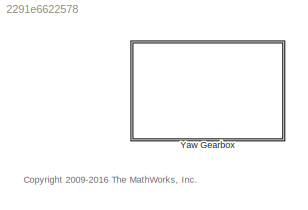
MODEL slx_2291e6622578
KIND library
CONFIG AbsTol = auto
CONFIG FixedStep = auto
CONFIG MaxStep = auto
CONFIG MinStep = auto
CONFIG RelTol = 1e-3
CONFIG SampleTimeConstraint = Unconstrained
CONFIG Solver = ode45
CONFIG SolverMode = Auto
CONFIG SolverName = ode45
CONFIG StartTime = 0.0
CONFIG StopTime = 10.0
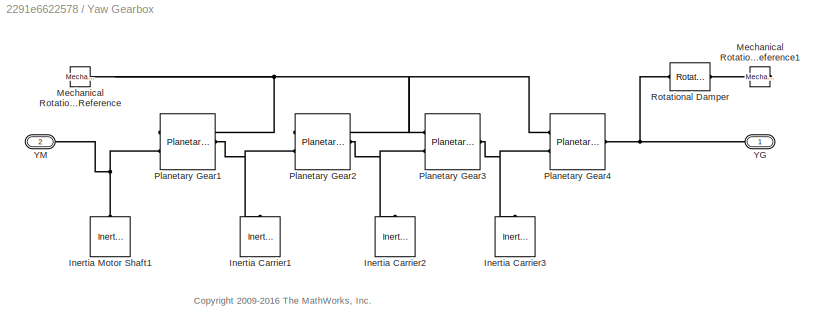
BLOCK [SubSystem] Yaw Gearbox
  Ports = [0, 0, 0, 0, 0, 1, 1]
  RequestExecContextInheritance = off
  Variant = off
BLOCK [Reference] Yaw Gearbox/Inertia Carrier1  REF=fl_lib/Mechanical/Rotational Elements/Inertia
  Ports = [0, 0, 0, 0, 0, 1]
  SourceBlock = fl_lib/Mechanical/Rotational Elements/Inertia
  SourceType = Inertia
BLOCK [Reference] Yaw Gearbox/Inertia Carrier2  REF=fl_lib/Mechanical/Rotational Elements/Inertia
  Ports = [0, 0, 0, 0, 0, 1]
  SourceBlock = fl_lib/Mechanical/Rotational Elements/Inertia
  SourceType = Inertia
BLOCK [Reference] Yaw Gearbox/Inertia Carrier3  REF=fl_lib/Mechanical/Rotational Elements/Inertia
  Ports = [0, 0, 0, 0, 0, 1]
  SourceBlock = fl_lib/Mechanical/Rotational Elements/Inertia
  SourceType = Inertia
BLOCK [Reference] Yaw Gearbox/Inertia Motor Shaft1  REF=fl_lib/Mechanical/Rotational Elements/Inertia
  Ports = [0, 0, 0, 0, 0, 1]
  SourceBlock = fl_lib/Mechanical/Rotational Elements/Inertia
  SourceType = Inertia
BLOCK [Reference] Yaw Gearbox/Mechanical Rotational Reference  REF=fl_lib/Mechanical/Rotational Elements/Mechanical
Rotational Reference
  Ports = [0, 0, 0, 0, 0, 1]
  SourceBlock = fl_lib/Mechanical/Rotational Elements/Mechanical\nRotational Reference
  SourceType = Mechanical\nRotational Reference
BLOCK [Reference] Yaw Gearbox/Mechanical Rotational Reference1  REF=fl_lib/Mechanical/Rotational Elements/Mechanical
Rotational Reference
  Ports = [0, 0, 0, 0, 0, 1]
  SourceBlock = fl_lib/Mechanical/Rotational Elements/Mechanical\nRotational Reference
  SourceType = Mechanical\nRotational Reference
BLOCK [Reference] Yaw Gearbox/Planetary Gear1  REF=sdl_lib/Gears/Planetary Gear
  Ports = [0, 0, 0, 0, 0, 1, 2]
  SourceBlock = sdl_lib/Gears/Planetary Gear
  SourceType = Planetary Gear
BLOCK [Reference] Yaw Gearbox/Planetary Gear2  REF=sdl_lib/Gears/Planetary Gear
  Ports = [0, 0, 0, 0, 0, 1, 2]
  SourceBlock = sdl_lib/Gears/Planetary Gear
  SourceType = Planetary Gear
BLOCK [Reference] Yaw Gearbox/Planetary Gear3  REF=sdl_lib/Gears/Planetary Gear
  Ports = [0, 0, 0, 0, 0, 1, 2]
  SourceBlock = sdl_lib/Gears/Planetary Gear
  SourceType = Planetary Gear
BLOCK [Reference] Yaw Gearbox/Planetary Gear4  REF=sdl_lib/Gears/Planetary Gear
  Ports = [0, 0, 0, 0, 0, 1, 2]
  SourceBlock = sdl_lib/Gears/Planetary Gear
  SourceType = Planetary Gear
BLOCK [Reference] Yaw Gearbox/Rotational Damper  REF=fl_lib/Mechanical/Rotational Elements/Rotational Damper
  Ports = [0, 0, 0, 0, 0, 1, 1]
  SourceBlock = fl_lib/Mechanical/Rotational Elements/Rotational Damper
  SourceType = Rotational Damper
BLOCK [PMIOPort] Yaw Gearbox/YG
  Port = 1
  Side = Right
BLOCK [PMIOPort] Yaw Gearbox/YM
  Port = 2
  Side = Left
ANNOTATION (root): <copyright redacted>
ANNOTATION Yaw Gearbox: <copyright redacted>
PNET net1: Yaw Gearbox/Inertia Carrier1:LConn1 -- Yaw Gearbox/Planetary Gear1:LConn1 -- Yaw Gearbox/Planetary Gear2:RConn2
PNET net2: Yaw Gearbox/Inertia Carrier2:LConn1 -- Yaw Gearbox/Planetary Gear2:LConn1 -- Yaw Gearbox/Planetary Gear3:RConn2
PNET net3: Yaw Gearbox/Inertia Carrier3:LConn1 -- Yaw Gearbox/Planetary Gear3:LConn1 -- Yaw Gearbox/Planetary Gear4:RConn2
PNET net4: Yaw Gearbox/Inertia Motor Shaft1:LConn1 -- Yaw Gearbox/Planetary Gear1:RConn2 -- Yaw Gearbox/YM:RConn1
PLINE Yaw Gearbox/Mechanical Rotational Reference1:LConn1 -- Yaw Gearbox/Rotational Damper:RConn1
PNET net5: Yaw Gearbox/Mechanical Rotational Reference:LConn1 -- Yaw Gearbox/Planetary Gear1:RConn1 -- Yaw Gearbox/Planetary Gear2:RConn1 -- Yaw Gearbox/Planetary Gear3:RConn1 -- Yaw Gearbox/Planetary Gear4:RConn1
PNET net6: Yaw Gearbox/Planetary Gear4:LConn1 -- Yaw Gearbox/Rotational Damper:LConn1 -- Yaw Gearbox/YG:RConn1
note: PNET lines group multi-terminal physical nets as a canonical sorted terminal list (undirected conserving connections); 2-terminal nets keep the pairwise PLINE form
